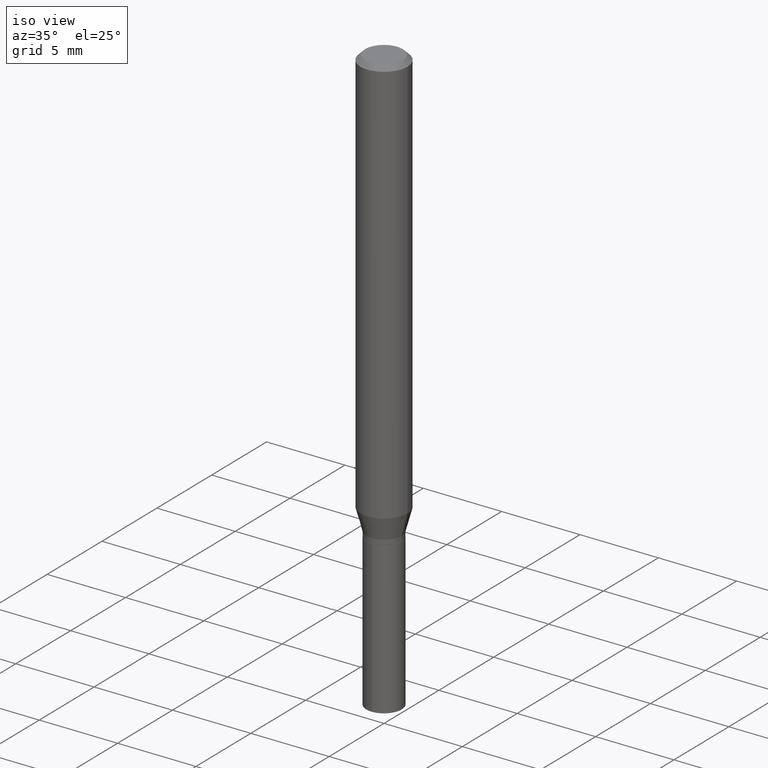
[diagram: clean part render]
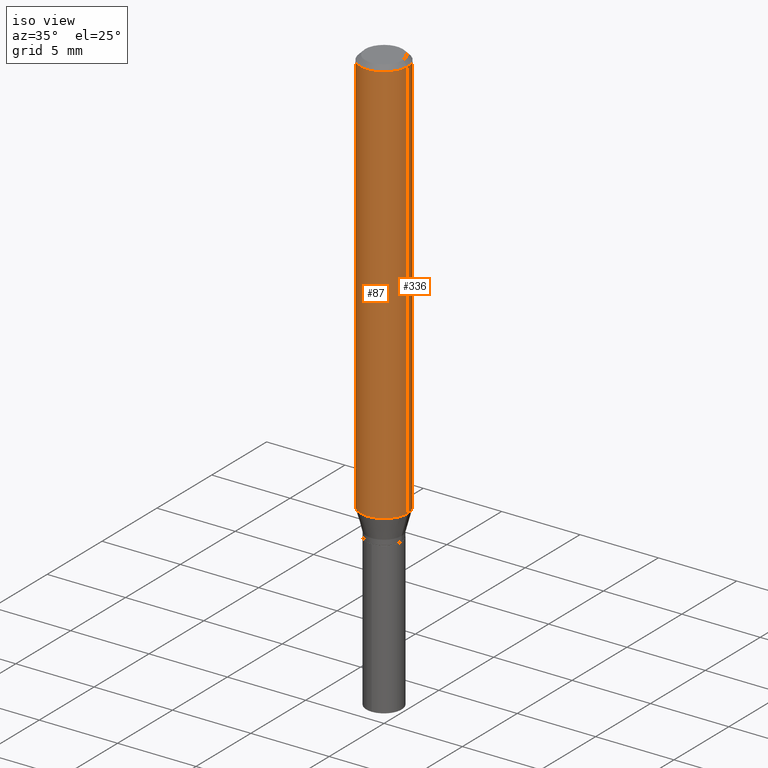
[diagram: same view with one multi-face feature highlighted, each face labeled with its STEP entity id]
A machine part, iso view. The highlighted faces form ONE feature: a constant-radius fillet chain: 2 tangent blend faces with common blend radius 1.4999 mm. The faces share edges in the B-rep.
Their STEP definitions:
[1] entity #336 (Cylinder):
#17 = FACE_OUTER_BOUND ( 'NONE', #449, .T. ) ;
#18 = EDGE_CURVE ( 'NONE', #184, #265, #28, .T. ) ;
#28 = LINE ( 'NONE', #303, #96 ) ;
#50 = CARTESIAN_POINT ( 'NONE',  ( -0.05904999999999999832, -1.392437428710102838E-15, -0.01181000000000007738 ) ) ;
#56 = ORIENTED_EDGE ( 'NONE', *, *, #80, .F. ) ;
#69 = DIRECTION ( 'NONE',  ( 1.000000000000000000, -6.982962677686265133E-15, 0.000000000000000000 ) ) ;
#78 = DIRECTION ( 'NONE',  ( -2.445468806185136597E-29, 3.491481338843145583E-15, 1.000000000000000000 ) ) ;
#80 = EDGE_CURVE ( 'NONE', #248, #265, #279, .T. ) ;
#96 = VECTOR ( 'NONE', #118, 39.37007874015748143 ) ;
#115 = EDGE_CURVE ( 'NONE', #325, #184, #342, .T. ) ;
#118 = DIRECTION ( 'NONE',  ( -2.445468806185136877E-29, 3.491481338843145188E-15, 1.000000000000000000 ) ) ;
#121 = EDGE_CURVE ( 'NONE', #325, #248, #230, .T. ) ;
#126 = AXIS2_PLACEMENT_3D ( 'NONE', #267, #78, #69 ) ;
#177 = DIRECTION ( 'NONE',  ( 1.000000000000000000, -6.982962677686266711E-15, 4.876176775795936353E-29 ) ) ;
#184 = VERTEX_POINT ( 'NONE', #195 ) ;
#193 = DIRECTION ( 'NONE',  ( -2.445468806185136877E-29, 3.491481338843145188E-15, 1.000000000000000000 ) ) ;
#195 = CARTESIAN_POINT ( 'NONE',  ( -0.05905000000000013016, -3.163215948274808624E-15, -1.026152250588358461 ) ) ;
#207 = CARTESIAN_POINT ( 'NONE',  ( 0.05905000000000013016, -3.995135379858523826E-15, -1.026152250588358461 ) ) ;
#230 = LINE ( 'NONE', #345, #257 ) ;
#241 = DIRECTION ( 'NONE',  ( -2.445468806185136597E-29, 3.491481338843145583E-15, 1.000000000000000000 ) ) ;
#248 = VERTEX_POINT ( 'NONE', #270 ) ;
#253 = ORIENTED_EDGE ( 'NONE', *, *, #121, .F. ) ;
#257 = VECTOR ( 'NONE', #193, 39.37007874015748143 ) ;
#265 = VERTEX_POINT ( 'NONE', #50 ) ;
#266 = DIRECTION ( 'NONE',  ( -2.445468806185136597E-29, 3.491481338843145583E-15, 1.000000000000000000 ) ) ;
#267 = CARTESIAN_POINT ( 'NONE',  ( 2.509423319210504221E-29, -3.582791433741148906E-15, -1.026152250588358461 ) ) ;
#270 = CARTESIAN_POINT ( 'NONE',  ( 0.05904999999999999832, -4.535783407291118600E-16, -0.01181000000000007738 ) ) ;
#279 = CIRCLE ( 'NONE', #298, 0.05904999999999999832 ) ;
#298 = AXIS2_PLACEMENT_3D ( 'NONE', #380, #266, #306 ) ;
#303 = CARTESIAN_POINT ( 'NONE',  ( -0.05905000000000006771, 4.195754854663396409E-16, -2.904631170795525045E-30 ) ) ;
#306 = DIRECTION ( 'NONE',  ( 1.000000000000000000, -6.982962677686266711E-15, 0.000000000000000000 ) ) ;
#320 = CYLINDRICAL_SURFACE ( 'NONE', #384, 0.05905000000000006771 ) ;
#325 = VERTEX_POINT ( 'NONE', #207 ) ;
#336 = ADVANCED_FACE ( 'NONE', ( #17 ), #320, .T. ) ;
#342 = CIRCLE ( 'NONE', #126, 0.05905000000000013016 ) ;
#345 = CARTESIAN_POINT ( 'NONE',  ( 0.05905000000000006771, -4.123439461173745257E-16, 2.879382386107503723E-30 ) ) ;
#380 = CARTESIAN_POINT ( 'NONE',  ( 2.888098660104665518E-31, -4.123439461173782112E-17, -0.01181000000000007738 ) ) ;
#384 = AXIS2_PLACEMENT_3D ( 'NONE', #406, #241, #177 ) ;
#406 = CARTESIAN_POINT ( 'NONE',  ( 0.000000000000000000, 0.000000000000000000, 0.000000000000000000 ) ) ;
#449 = EDGE_LOOP ( 'NONE', ( #456, #475, #56, #253 ) ) ;
#456 = ORIENTED_EDGE ( 'NONE', *, *, #115, .T. ) ;
#475 = ORIENTED_EDGE ( 'NONE', *, *, #18, .T. ) ;
[2] entity #87 (Cylinder):
#12 = CARTESIAN_POINT ( 'NONE',  ( 2.509423319210504221E-29, -3.582791433741148906E-15, -1.026152250588358461 ) ) ;
#18 = EDGE_CURVE ( 'NONE', #184, #265, #28, .T. ) ;
#28 = LINE ( 'NONE', #303, #96 ) ;
#39 = FACE_OUTER_BOUND ( 'NONE', #479, .T. ) ;
#44 = DIRECTION ( 'NONE',  ( -2.445468806185136597E-29, 3.491481338843145583E-15, 1.000000000000000000 ) ) ;
#50 = CARTESIAN_POINT ( 'NONE',  ( -0.05904999999999999832, -1.392437428710102838E-15, -0.01181000000000007738 ) ) ;
#87 = ADVANCED_FACE ( 'NONE', ( #39 ), #381, .T. ) ;
#96 = VECTOR ( 'NONE', #118, 39.37007874015748143 ) ;
#106 = AXIS2_PLACEMENT_3D ( 'NONE', #394, #44, #427 ) ;
#118 = DIRECTION ( 'NONE',  ( -2.445468806185136877E-29, 3.491481338843145188E-15, 1.000000000000000000 ) ) ;
#121 = EDGE_CURVE ( 'NONE', #325, #248, #230, .T. ) ;
#134 = EDGE_CURVE ( 'NONE', #265, #248, #383, .T. ) ;
#184 = VERTEX_POINT ( 'NONE', #195 ) ;
#188 = DIRECTION ( 'NONE',  ( 1.000000000000000000, -6.982962677686266711E-15, 4.876176775795936353E-29 ) ) ;
#193 = DIRECTION ( 'NONE',  ( -2.445468806185136877E-29, 3.491481338843145188E-15, 1.000000000000000000 ) ) ;
#195 = CARTESIAN_POINT ( 'NONE',  ( -0.05905000000000013016, -3.163215948274808624E-15, -1.026152250588358461 ) ) ;
#207 = CARTESIAN_POINT ( 'NONE',  ( 0.05905000000000013016, -3.995135379858523826E-15, -1.026152250588358461 ) ) ;
#225 = AXIS2_PLACEMENT_3D ( 'NONE', #228, #455, #188 ) ;
#228 = CARTESIAN_POINT ( 'NONE',  ( 0.000000000000000000, 0.000000000000000000, 0.000000000000000000 ) ) ;
#230 = LINE ( 'NONE', #345, #257 ) ;
#238 = CIRCLE ( 'NONE', #461, 0.05905000000000013016 ) ;
#247 = DIRECTION ( 'NONE',  ( 1.000000000000000000, -6.982962677686265133E-15, 0.000000000000000000 ) ) ;
#248 = VERTEX_POINT ( 'NONE', #270 ) ;
#257 = VECTOR ( 'NONE', #193, 39.37007874015748143 ) ;
#260 = ORIENTED_EDGE ( 'NONE', *, *, #18, .F. ) ;
#265 = VERTEX_POINT ( 'NONE', #50 ) ;
#270 = CARTESIAN_POINT ( 'NONE',  ( 0.05904999999999999832, -4.535783407291118600E-16, -0.01181000000000007738 ) ) ;
#292 = ORIENTED_EDGE ( 'NONE', *, *, #134, .F. ) ;
#303 = CARTESIAN_POINT ( 'NONE',  ( -0.05905000000000006771, 4.195754854663396409E-16, -2.904631170795525045E-30 ) ) ;
#322 = ORIENTED_EDGE ( 'NONE', *, *, #121, .T. ) ;
#325 = VERTEX_POINT ( 'NONE', #207 ) ;
#345 = CARTESIAN_POINT ( 'NONE',  ( 0.05905000000000006771, -4.123439461173745257E-16, 2.879382386107503723E-30 ) ) ;
#381 = CYLINDRICAL_SURFACE ( 'NONE', #225, 0.05905000000000006771 ) ;
#383 = CIRCLE ( 'NONE', #106, 0.05904999999999999832 ) ;
#394 = CARTESIAN_POINT ( 'NONE',  ( 2.888098660104665518E-31, -4.123439461173782112E-17, -0.01181000000000007738 ) ) ;
#426 = EDGE_CURVE ( 'NONE', #184, #325, #238, .T. ) ;
#427 = DIRECTION ( 'NONE',  ( 1.000000000000000000, -6.982962677686266711E-15, 0.000000000000000000 ) ) ;
#455 = DIRECTION ( 'NONE',  ( -2.445468806185136597E-29, 3.491481338843145583E-15, 1.000000000000000000 ) ) ;
#461 = AXIS2_PLACEMENT_3D ( 'NONE', #12, #470, #247 ) ;
#470 = DIRECTION ( 'NONE',  ( -2.445468806185136597E-29, 3.491481338843145583E-15, 1.000000000000000000 ) ) ;
#479 = EDGE_LOOP ( 'NONE', ( #260, #484, #322, #292 ) ) ;
#484 = ORIENTED_EDGE ( 'NONE', *, *, #426, .T. ) ;